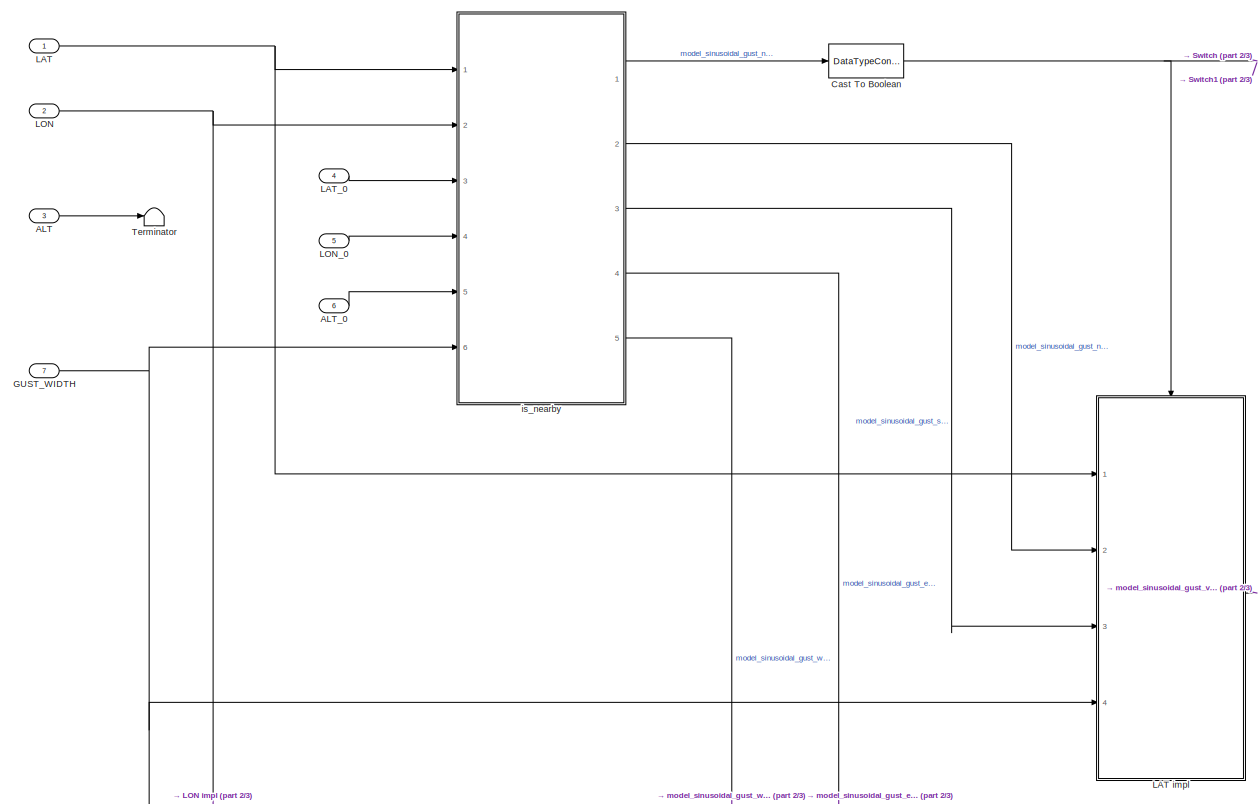
[diagram: root canvas - part 1/3, top left region]
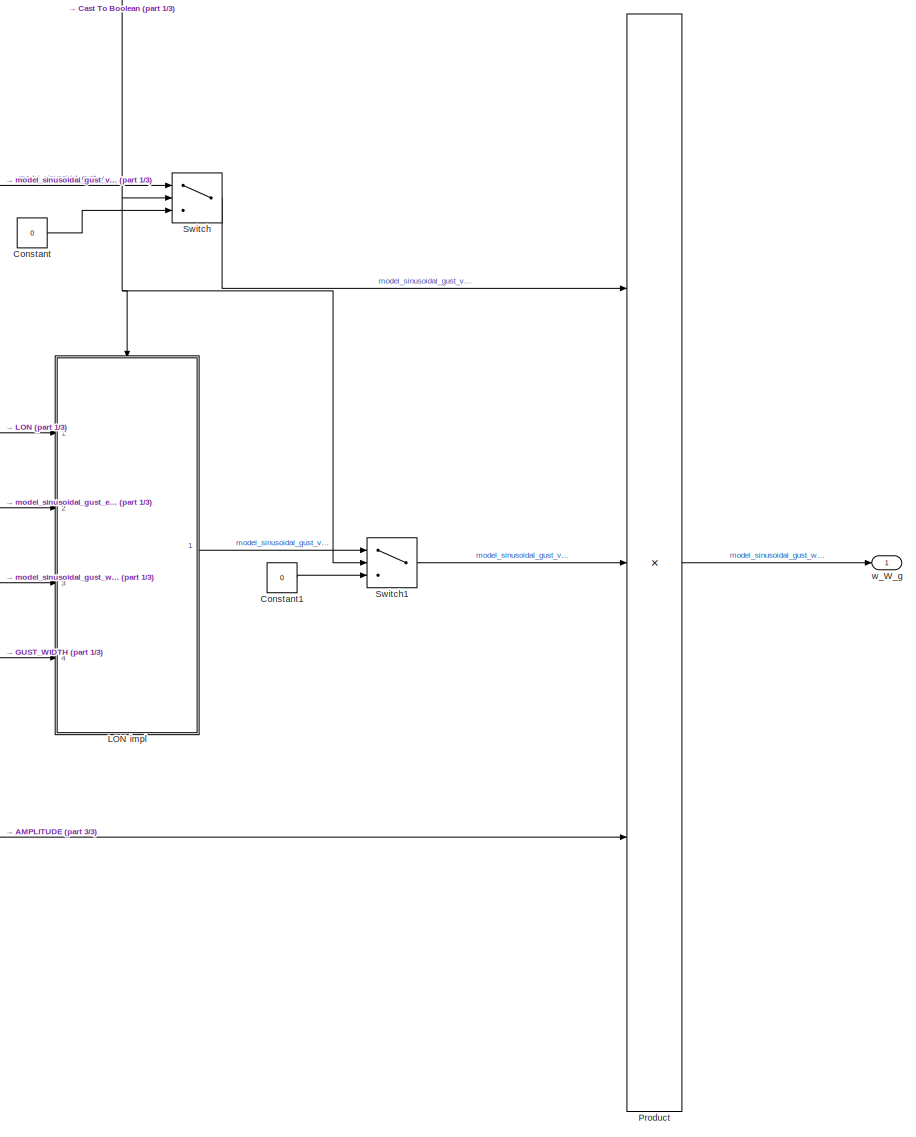
[diagram: root canvas - part 2/3, middle right region]
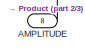
[diagram: root canvas - part 3/3, bottom left region]
MODEL slx_195cfbca2bd4
KIND model
BLOCK [Inport] ALT
  OutDataTypeStr = double
  Port = 3
BLOCK [Inport] ALT_0
  OutDataTypeStr = double
  Port = 6
BLOCK [Inport] AMPLITUDE
  OutDataTypeStr = double
  Port = 8
BLOCK [DataTypeConversion] Cast To Boolean
  OutDataTypeStr = boolean
  RndMeth = Floor
  SaturateOnIntegerOverflow = off
BLOCK [Constant] Constant
  Value = 0
BLOCK [Constant] Constant1
  Value = 0
BLOCK [Inport] GUST_WIDTH
  OutDataTypeStr = double
  Port = 7
BLOCK [Inport] LAT
  OutDataTypeStr = double
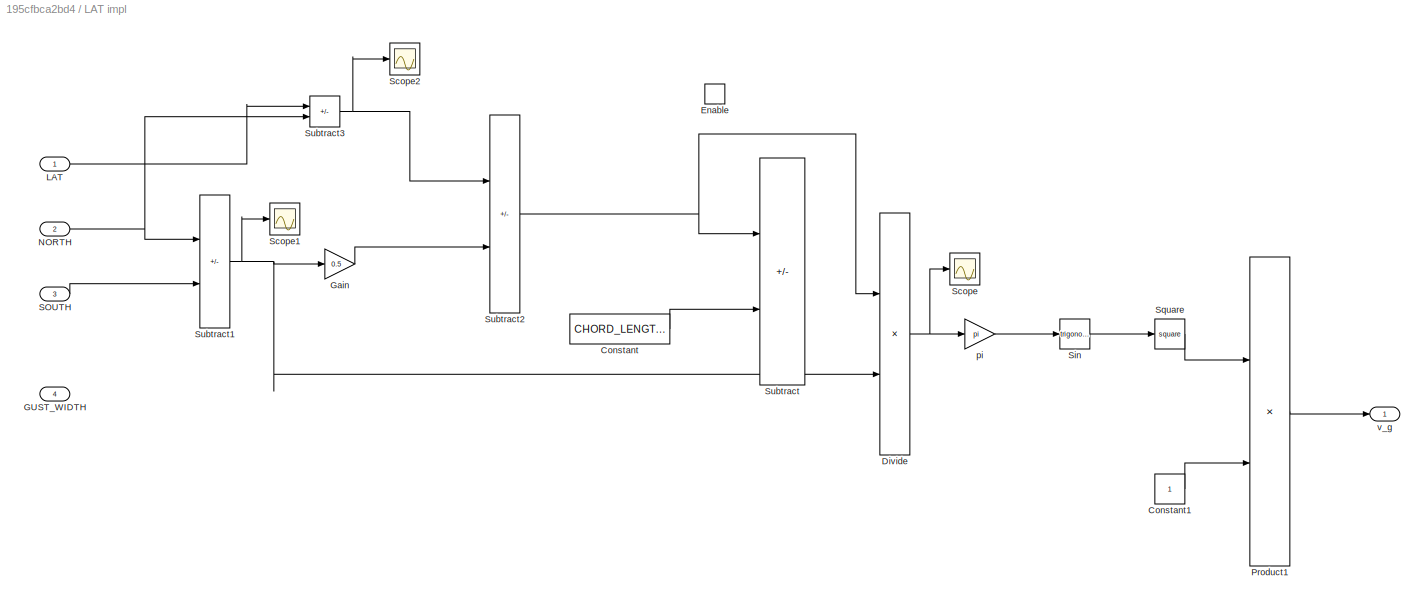
BLOCK [SubSystem] LAT impl
  Ports = [4, 1, 1]
  RequestExecContextInheritance = off
  TreatAsAtomicUnit = on
BLOCK [Constant] LAT impl/Constant
  Commented = on
  Value = CHORD_LENGTH/2
BLOCK [Constant] LAT impl/Constant1
BLOCK [Product] LAT impl/Divide
  Inputs = */
  Ports = [2, 1]
BLOCK [EnablePort] LAT impl/Enable
  Ports = []
BLOCK [Inport] LAT impl/GUST_WIDTH
  OutDataTypeStr = double
  Port = 4
BLOCK [Gain] LAT impl/Gain
  Commented = through
  Gain = 0.5
BLOCK [Inport] LAT impl/LAT
  OutDataTypeStr = double
BLOCK [Inport] LAT impl/NORTH
  OutDataTypeStr = double
  Port = 2
BLOCK [Product] LAT impl/Product1
  Ports = [2, 1]
BLOCK [Inport] LAT impl/SOUTH
  OutDataTypeStr = double
  Port = 3
BLOCK [Scope] LAT impl/Scope
  Floating = off
  NumInputPorts = 1
  Ports = [1]
  ScopeSpecificationString = Simulink.scopes.TimeScopeBlockCfg('CurrentConfiguration', extmgr.ConfigurationSet(extmgr.Configuration('Core','General UI',true),extmgr.Configuration('Core','Source UI',true),extmgr.Configuration('Sources','WiredSimulink',true,'DataLoggingVariableName','ScopeData1'),extmgr.Configuration('Visuals','Time Domain',true,'SerializedDisplays',{struct('MinYLimReal','-1.56984','MaxYLimReal','-0.43347','YLa...<+1423ch>
BLOCK [Scope] LAT impl/Scope1
  Floating = off
  NumInputPorts = 1
  Ports = [1]
  ScopeSpecificationString = Simulink.scopes.TimeScopeBlockCfg('CurrentConfiguration', extmgr.ConfigurationSet(extmgr.Configuration('Core','General UI',true),extmgr.Configuration('Core','Source UI',true),extmgr.Configuration('Sources','WiredSimulink',true,'DataLoggingVariableName','ScopeData2'),extmgr.Configuration('Visuals','Time Domain',true,'SerializedDisplays',{struct('MinYLimReal','0.00006','MaxYLimReal','0.00026','YLabe...<+1424ch>
BLOCK [Scope] LAT impl/Scope2
  Floating = off
  NumInputPorts = 1
  Ports = [1]
  ScopeSpecificationString = Simulink.scopes.TimeScopeBlockCfg('CurrentConfiguration', extmgr.ConfigurationSet(extmgr.Configuration('Core','General UI',true),extmgr.Configuration('Core','Source UI',true),extmgr.Configuration('Sources','WiredSimulink',true,'DataLoggingVariableName','ScopeData3'),extmgr.Configuration('Visuals','Time Domain',true,'SerializedDisplays',{struct('MinYLimReal','-0.00017','MaxYLimReal','0.00001','YLab...<+1426ch>
BLOCK [Trigonometry] LAT impl/Sin
  Ports = [1, 1]
BLOCK [Math] LAT impl/Square
  Operator = square
  Ports = [1, 1]
BLOCK [Sum] LAT impl/Subtract
  Commented = on
  IconShape = rectangular
  Inputs = +-
  Ports = [2, 1]
BLOCK [Sum] LAT impl/Subtract1
  IconShape = rectangular
  Inputs = +-
  Ports = [2, 1]
BLOCK [Sum] LAT impl/Subtract2
  IconShape = rectangular
  Inputs = +-
  Ports = [2, 1]
BLOCK [Sum] LAT impl/Subtract3
  IconShape = rectangular
  Inputs = +-
  Ports = [2, 1]
BLOCK [Gain] LAT impl/pi
  Gain = pi
BLOCK [Outport] LAT impl/v_g
  OutDataTypeStr = double
BLOCK [Inport] LAT_0
  OutDataTypeStr = double
  Port = 4
BLOCK [Inport] LON
  OutDataTypeStr = double
  Port = 2
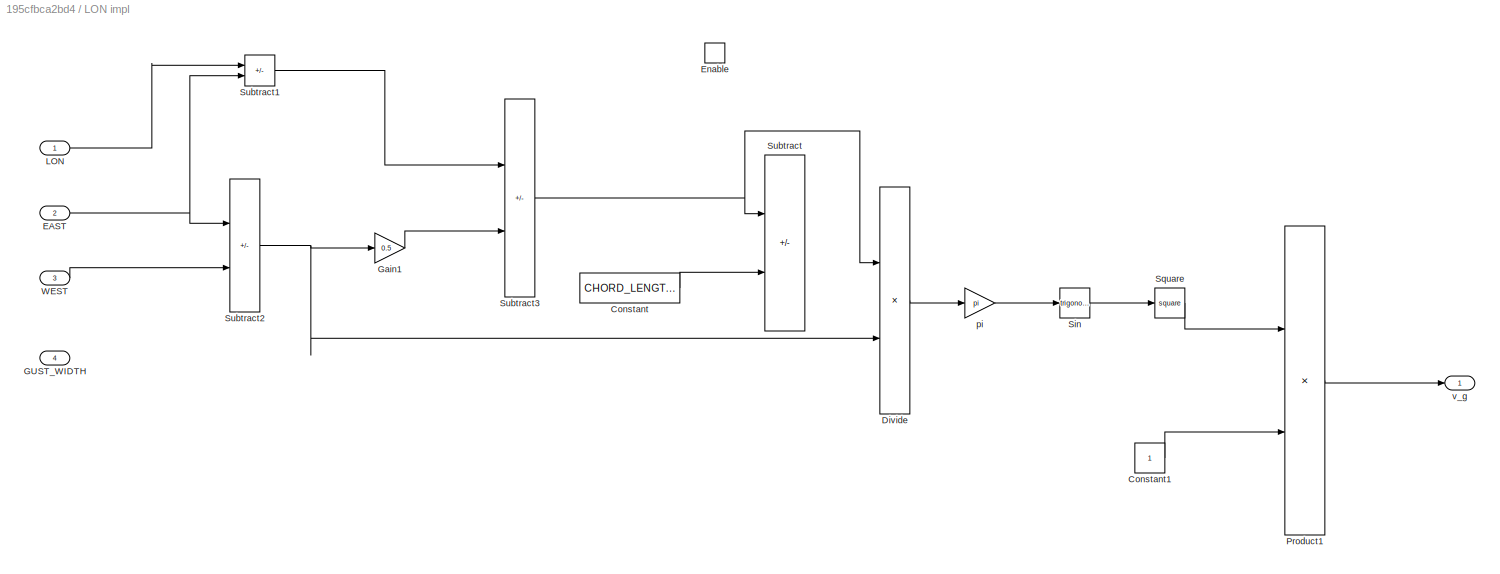
BLOCK [SubSystem] LON impl
  Ports = [4, 1, 1]
  RequestExecContextInheritance = off
  TreatAsAtomicUnit = on
BLOCK [Constant] LON impl/Constant
  Commented = on
  Value = CHORD_LENGTH/2
BLOCK [Constant] LON impl/Constant1
BLOCK [Product] LON impl/Divide
  Inputs = */
  Ports = [2, 1]
BLOCK [Inport] LON impl/EAST
  OutDataTypeStr = double
  Port = 2
BLOCK [EnablePort] LON impl/Enable
  Ports = []
BLOCK [Inport] LON impl/GUST_WIDTH
  OutDataTypeStr = double
  Port = 4
BLOCK [Gain] LON impl/Gain1
  Commented = through
  Gain = 0.5
BLOCK [Inport] LON impl/LON
  OutDataTypeStr = double
BLOCK [Product] LON impl/Product1
  Ports = [2, 1]
BLOCK [Trigonometry] LON impl/Sin
  Ports = [1, 1]
BLOCK [Math] LON impl/Square
  Operator = square
  Ports = [1, 1]
BLOCK [Sum] LON impl/Subtract
  Commented = on
  IconShape = rectangular
  Inputs = +-
  Ports = [2, 1]
BLOCK [Sum] LON impl/Subtract1
  IconShape = rectangular
  Inputs = +-
  Ports = [2, 1]
BLOCK [Sum] LON impl/Subtract2
  IconShape = rectangular
  Inputs = +-
  Ports = [2, 1]
BLOCK [Sum] LON impl/Subtract3
  IconShape = rectangular
  Inputs = +-
  Ports = [2, 1]
BLOCK [Inport] LON impl/WEST
  OutDataTypeStr = double
  Port = 3
BLOCK [Gain] LON impl/pi
  Gain = pi
BLOCK [Outport] LON impl/v_g
  OutDataTypeStr = double
BLOCK [Inport] LON_0
  OutDataTypeStr = double
  Port = 5
BLOCK [Product] Product
  Inputs = 3
  Ports = [3, 1]
BLOCK [Switch] Switch
  Criteria = u2 > Threshold
  InputSameDT = off
  SaturateOnIntegerOverflow = off
BLOCK [Switch] Switch1
  Criteria = u2 > Threshold
  InputSameDT = off
  SaturateOnIntegerOverflow = off
BLOCK [Terminator] Terminator
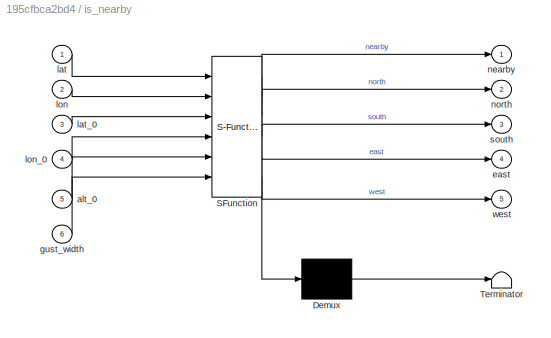
BLOCK [SubSystem] is_nearby
  ErrorFcn = Stateflow.Translate.translate
  PermitHierarchicalResolution = ExplicitOnly
  Ports = [6, 5]
  RequestExecContextInheritance = off
  SFBlockType = MATLAB Function
  TreatAsAtomicUnit = on
BLOCK [Demux] is_nearby/ Demux 
  Outputs = 1
  Ports = [1, 1]
BLOCK [S-Function] is_nearby/ SFunction 
  EnableBusSupport = on
  FunctionName = sf_sfun
  PortCounts = [6 6]
  Ports = [6, 6]
  SFcnIsStateOwnerBlock = off
  SFunctionDeploymentMode = off
  Tag = Stateflow S-Function 1
BLOCK [Terminator] is_nearby/ Terminator 
BLOCK [Inport] is_nearby/alt_0
  Port = 5
BLOCK [Outport] is_nearby/east
  Port = 4
BLOCK [Inport] is_nearby/gust_width
  Port = 6
BLOCK [Inport] is_nearby/lat
BLOCK [Inport] is_nearby/lat_0
  Port = 3
BLOCK [Inport] is_nearby/lon
  Port = 2
BLOCK [Inport] is_nearby/lon_0
  Port = 4
BLOCK [Outport] is_nearby/nearby
BLOCK [Outport] is_nearby/north
  Port = 2
BLOCK [Outport] is_nearby/south
  Port = 3
BLOCK [Outport] is_nearby/west
  Port = 5
BLOCK [Outport] w_W_g
  OutDataTypeStr = double
LINE ALT:1 -> Terminator:1
LINE ALT_0:1 -> is_nearby:5
LINE AMPLITUDE:1 -> Product:3
NET Cast To Boolean:1 -> LAT impl:enable, LON impl:enable, Switch1:2, Switch:2
LINE Constant1:1 -> Switch1:3
LINE Constant:1 -> Switch:3
NET GUST_WIDTH:1 -> LAT impl:4, LON impl:4, is_nearby:6
LINE LAT impl/Constant1:1 -> LAT impl/Product1:2
LINE LAT impl/Constant:1 -> LAT impl/Subtract:2
NET LAT impl/Divide:1 -> LAT impl/Scope:1, LAT impl/pi:1
LINE LAT impl/Gain:1 -> LAT impl/Subtract2:2
LINE LAT impl/LAT:1 -> LAT impl/Subtract3:1
NET LAT impl/NORTH:1 -> LAT impl/Subtract1:1, LAT impl/Subtract3:2
LINE LAT impl/Product1:1 -> LAT impl/v_g:1
LINE LAT impl/SOUTH:1 -> LAT impl/Subtract1:2
LINE LAT impl/Sin:1 -> LAT impl/Square:1
LINE LAT impl/Square:1 -> LAT impl/Product1:1
NET LAT impl/Subtract1:1 -> LAT impl/Divide:2, LAT impl/Gain:1, LAT impl/Scope1:1
NET LAT impl/Subtract2:1 -> LAT impl/Divide:1, LAT impl/Subtract:1
NET LAT impl/Subtract3:1 -> LAT impl/Scope2:1, LAT impl/Subtract2:1
LINE LAT impl/pi:1 -> LAT impl/Sin:1
LINE LAT impl:1 -> Switch:1
NET LAT:1 -> LAT impl:1, is_nearby:1
LINE LAT_0:1 -> is_nearby:3
LINE LON impl/Constant1:1 -> LON impl/Product1:2
LINE LON impl/Constant:1 -> LON impl/Subtract:2
LINE LON impl/Divide:1 -> LON impl/pi:1
NET LON impl/EAST:1 -> LON impl/Subtract1:2, LON impl/Subtract2:1
LINE LON impl/Gain1:1 -> LON impl/Subtract3:2
LINE LON impl/LON:1 -> LON impl/Subtract1:1
LINE LON impl/Product1:1 -> LON impl/v_g:1
LINE LON impl/Sin:1 -> LON impl/Square:1
LINE LON impl/Square:1 -> LON impl/Product1:1
LINE LON impl/Subtract1:1 -> LON impl/Subtract3:1
NET LON impl/Subtract2:1 -> LON impl/Divide:2, LON impl/Gain1:1
NET LON impl/Subtract3:1 -> LON impl/Divide:1, LON impl/Subtract:1
LINE LON impl/WEST:1 -> LON impl/Subtract2:2
LINE LON impl/pi:1 -> LON impl/Sin:1
LINE LON impl:1 -> Switch1:1
NET LON:1 -> LON impl:1, is_nearby:2
LINE LON_0:1 -> is_nearby:4
LINE Product:1 -> w_W_g:1
LINE Switch1:1 -> Product:2
LINE Switch:1 -> Product:1
LINE is_nearby:1 -> Cast To Boolean:1
LINE is_nearby:2 -> LAT impl:2
LINE is_nearby:3 -> LAT impl:3
LINE is_nearby:4 -> LON impl:2
LINE is_nearby:5 -> LON impl:3
note: NET lines group one-source signal fan-out (src -> all destinations, sorted); 1:1 wires keep LINE
CHART is_nearby states=1 transitions=1
  STATE_LABEL 'eML_blk_kernel()'
  STATE_LABEL 'SCRIPT:\n% model_sinusoidal_gust\nfunction [nearby, north, south, east, west] = is_nearby(lat, lon, lat_0, lon_0, alt_0, gust_width)\n    % Units:\n    % [lat] = rad\n    % [lon] = rad\n    % [lat_0] = rad\n    % [lon_0] = rad\n    % [height_0] = m\n    % [gust_width] = m\n    % Independet of altitude, phenomena is available on all heights, because otherwise height distribution is needed\n\n    % Option 1: do...<+1216ch>'
CHART  states=0 transitions=0
